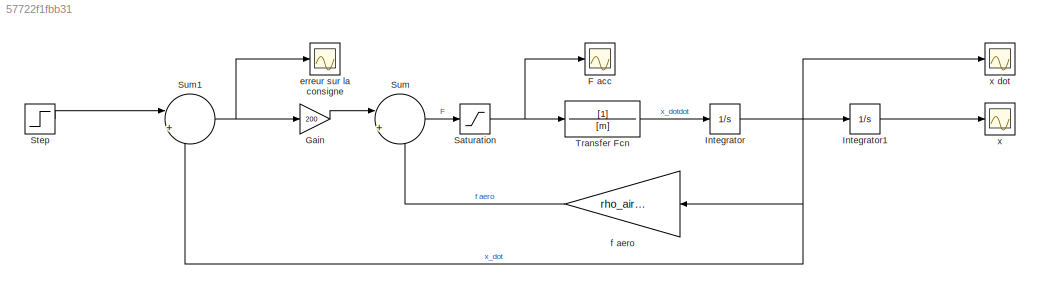
MODEL slx_57722f1fbb31
KIND model
CONFIG AbsTol = auto
CONFIG FixedStep = auto
CONFIG MaxStep = auto
CONFIG MinStep = auto
CONFIG RelTol = 1e-3
CONFIG SampleTimeConstraint = Unconstrained
CONFIG Solver = ode45
CONFIG SolverMode = Auto
CONFIG SolverName = ode45
CONFIG StartTime = 0.0
CONFIG StopTime = 1000
BLOCK [Scope] F acc
  Floating = off
  NumInputPorts = 1
  Ports = [1]
  SaveName = ScopeData7
  ZoomMode = xonly
BLOCK [Gain] Gain
  Gain = 200
  OutDataTypeStr = Inherit: Inherit via internal rule
  ParamDataTypeStr = Inherit: Inherit via internal rule
  SaturateOnIntegerOverflow = off
BLOCK [Integrator] Integrator
  Ports = [1, 1]
BLOCK [Integrator] Integrator1
  Ports = [1, 1]
BLOCK [Saturate] Saturation
  InputPortMap = u0
  LowerLimit = -150
  Ports = [1, 1]
  UpperLimit = 150
BLOCK [Step] Step
  After = 4.16
  SampleTime = 0
  Time = 0
BLOCK [Sum] Sum
  IconShape = round
  InputSameDT = off
  Inputs = |+-
  OutDataTypeStr = Inherit: Inherit via internal rule
  Ports = [2, 1]
  SaturateOnIntegerOverflow = off
BLOCK [Sum] Sum1
  IconShape = round
  InputSameDT = off
  Inputs = |+-
  OutDataTypeStr = Inherit: Inherit via internal rule
  Ports = [2, 1]
  SaturateOnIntegerOverflow = off
BLOCK [TransferFcn] Transfer Fcn
  Denominator = [m]
BLOCK [Scope] erreur sur la consigne
  Floating = off
  NumInputPorts = 1
  Ports = [1]
  SaveName = ScopeData12
  ZoomMode = yonly
BLOCK [Gain] f aero
  Gain = rho_air*area/2*Cd
  OutDataTypeStr = Inherit: Inherit via internal rule
  ParamDataTypeStr = Inherit: Inherit via internal rule
  SaturateOnIntegerOverflow = off
BLOCK [Scope] x
  Floating = off
  NumInputPorts = 1
  Ports = [1]
  ZoomMode = xonly
BLOCK [Scope] x dot
  Floating = off
  NumInputPorts = 1
  Ports = [1]
  SaveName = ScopeData13
  ZoomMode = xonly
LINE Gain:1 -> Sum:1
LINE Integrator1:1 -> x:1
NET Integrator:1 -> Integrator1:1, Sum1:2, f aero:1, x dot:1
NET Saturation:1 -> F acc:1, Transfer Fcn:1
LINE Step:1 -> Sum1:1
NET Sum1:1 -> Gain:1, erreur sur la consigne:1
LINE Sum:1 -> Saturation:1
LINE Transfer Fcn:1 -> Integrator:1
LINE f aero:1 -> Sum:2
note: NET lines group one-source signal fan-out (src -> all destinations, sorted); 1:1 wires keep LINE
